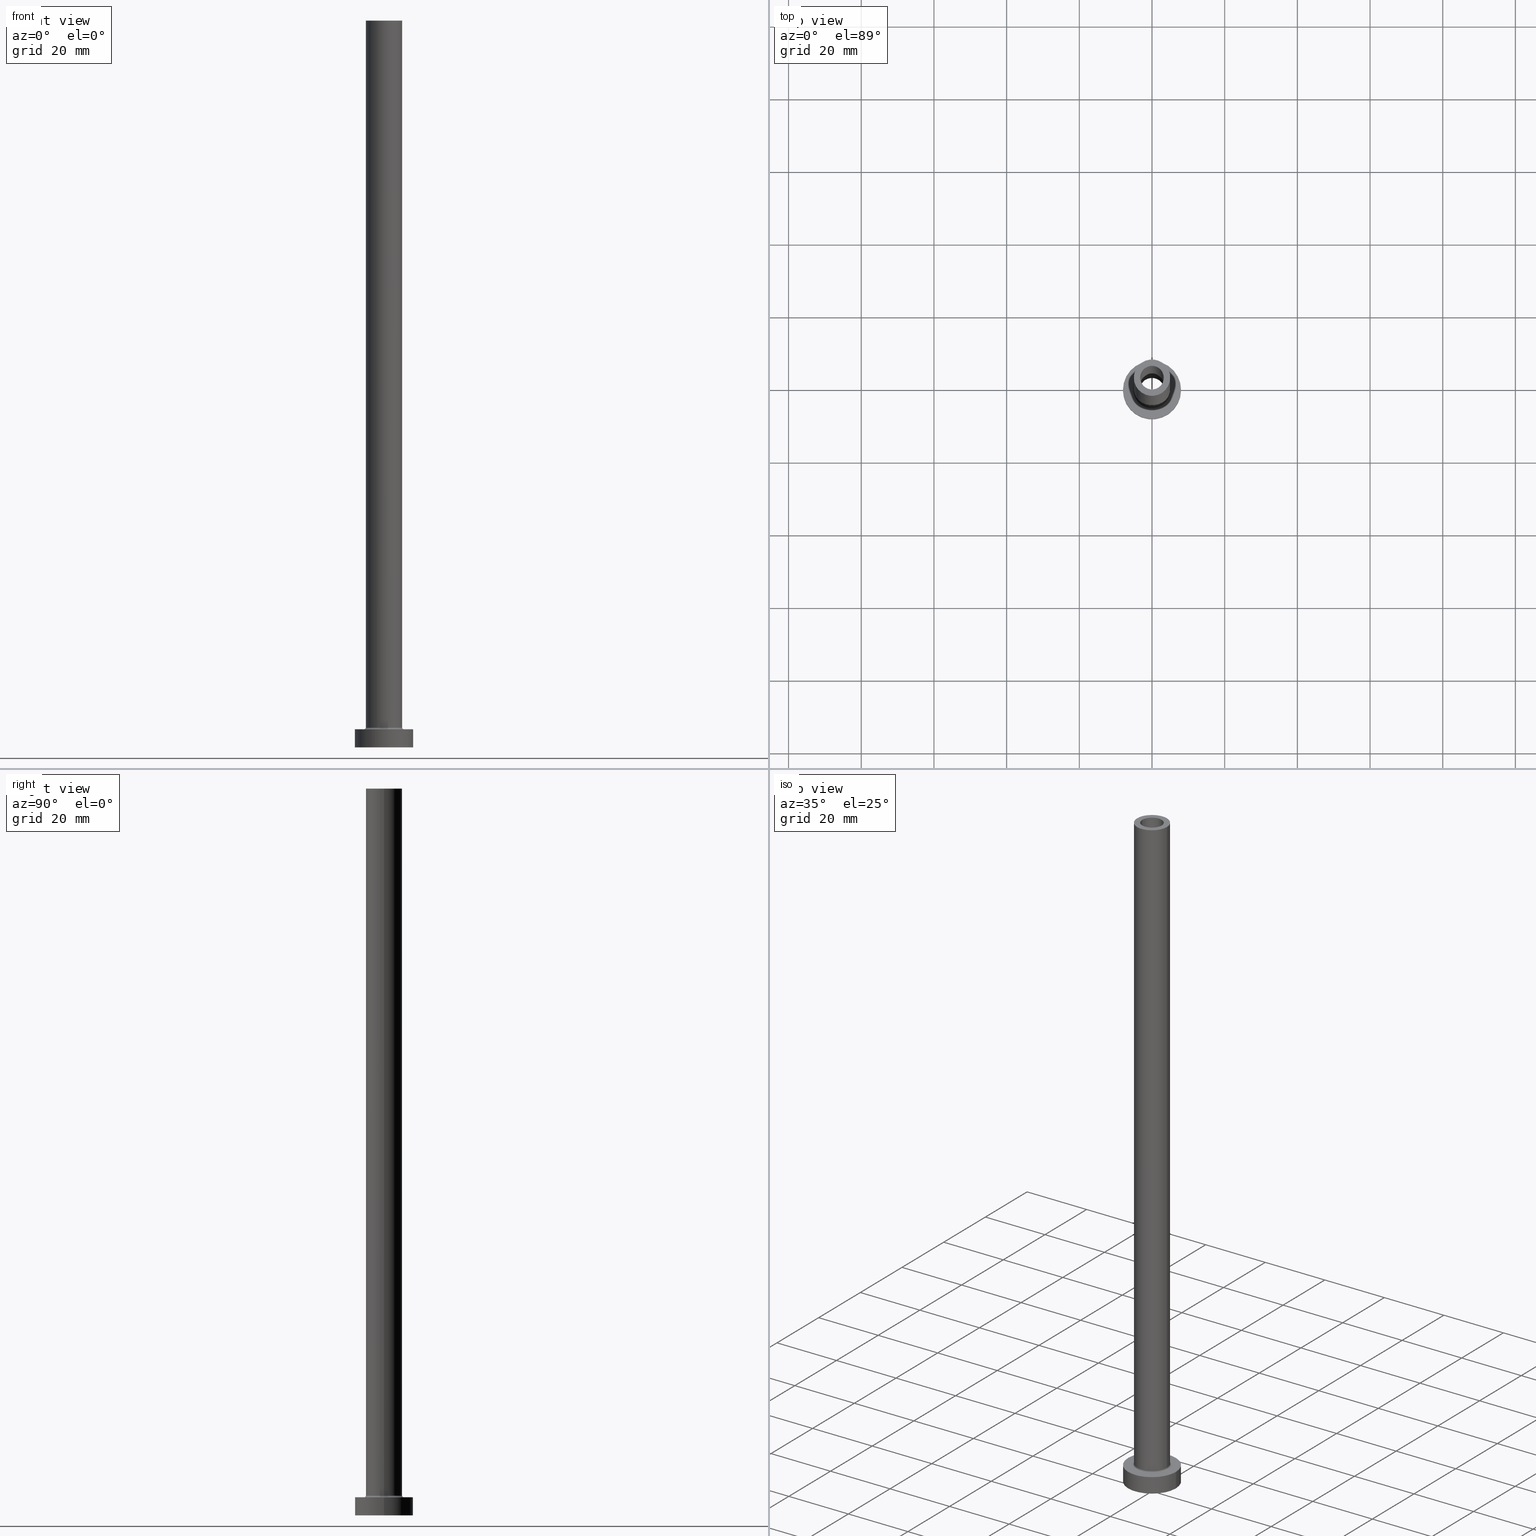
[diagram: canonical four-view strip — front | top / right | iso, engineering-drawing reading convention]
A machine part, canonical four-view strip (front | top / right | iso — engineering-drawing reading convention). The complete STEP part file that produces these views, byte-faithful:
ISO-10303-21;
HEADER;
FILE_DESCRIPTION (( 'STEP AP203' ),
    '1' );
FILE_NAME ('23e9.STEP',
    '2023-02-13T14:02:40',
    ( '' ),
    ( '' ),
    'SwSTEP 2.0',
    'SolidWorks 2019',
    '' );
FILE_SCHEMA (( 'CONFIG_CONTROL_DESIGN' ));
ENDSEC;

DATA;
#1 = ORGANIZATION ( 'NEUR�EN�', 'NEUR�EN�', '' ) ;
#2 = PRODUCT ( '23e9', '23e9', '', ( #278 ) ) ;
#3 = ADVANCED_FACE ( 'NONE', ( #79, #171 ), #389, .T. ) ;
#4 = AXIS2_PLACEMENT_3D ( 'NONE', #5, #176, #324 ) ;
#5 = CARTESIAN_POINT ( 'NONE',  ( 0.000000000000000000, 0.000000000000000000, 5.500000000000005329 ) ) ;
#6 = AXIS2_PLACEMENT_3D ( 'NONE', #315, #100, #168 ) ;
#7 = DIRECTION ( 'NONE',  ( 1.000000000000000000, 0.000000000000000000, -0.000000000000000000 ) ) ;
#8 = SECURITY_CLASSIFICATION_LEVEL ( 'unclassified' ) ;
#9 = CARTESIAN_POINT ( 'NONE',  ( -5.000000000000000000, 0.000000000000000000, 200.0000000000000000 ) ) ;
#10 = EDGE_CURVE ( 'NONE', #458, #308, #117, .T. ) ;
#11 = DATE_AND_TIME ( #297, #394 ) ;
#12 = DIRECTION ( 'NONE',  ( -1.000000000000000000, 1.224646799147351482E-16, 0.000000000000000000 ) ) ;
#13 = APPROVAL_STATUS ( 'not_yet_approved' ) ;
#14 = AXIS2_PLACEMENT_3D ( 'NONE', #430, #321, #109 ) ;
#15 = DIRECTION ( 'NONE',  ( -0.000000000000000000, -0.000000000000000000, -1.000000000000000000 ) ) ;
#16 = LINE ( 'NONE', #52, #147 ) ;
#17 = EDGE_LOOP ( 'NONE', ( #331, #310 ) ) ;
#18 = DIRECTION ( 'NONE',  ( -1.000000000000000000, 0.000000000000000000, 0.000000000000000000 ) ) ;
#19 = CIRCLE ( 'NONE', #106, 5.500000000000000000 ) ;
#20 = LINE ( 'NONE', #161, #91 ) ;
#21 = DIRECTION ( 'NONE',  ( 0.000000000000000000, 0.000000000000000000, 1.000000000000000000 ) ) ;
#22 = LOCAL_TIME ( 15, 2, 40.00000000000000000, #261 ) ;
#23 = CARTESIAN_POINT ( 'NONE',  ( -3.250000000000000444, 0.000000000000000000, 200.0000000000000000 ) ) ;
#24 = DIRECTION ( 'NONE',  ( 0.000000000000000000, 0.000000000000000000, 1.000000000000000000 ) ) ;
#25 = VECTOR ( 'NONE', #270, 1000.000000000000000 ) ;
#26 = CARTESIAN_POINT ( 'NONE',  ( -5.500000000000000000, 6.735557395310442023E-16, 5.000000000000002665 ) ) ;
#27 = DIRECTION ( 'NONE',  ( 0.000000000000000000, 0.000000000000000000, 1.000000000000000000 ) ) ;
#28 = CARTESIAN_POINT ( 'NONE',  ( 0.000000000000000000, 0.000000000000000000, 155.0000000000000284 ) ) ;
#29 = CIRCLE ( 'NONE', #14, 3.250000000000000444 ) ;
#30 = EDGE_CURVE ( 'NONE', #322, #308, #19, .T. ) ;
#31 = PERSON ( 'NEUR�EN�', 'NEUR�EN�', 'NEUR�EN�', ('NEUR�EN�'), ('NEUR�EN�'), ('NEUR�EN�') ) ;
#32 = AXIS2_PLACEMENT_3D ( 'NONE', #46, #219, #7 ) ;
#33 = CARTESIAN_POINT ( 'NONE',  ( 0.000000000000000000, 0.000000000000000000, 164.6166522241370842 ) ) ;
#34 = CIRCLE ( 'NONE', #416, 8.000000000000000000 ) ;
#35 = CIRCLE ( 'NONE', #69, 8.000000000000000000 ) ;
#36 = MANIFOLD_SOLID_BREP ( 'Odebrat vysunut�m4', #215 ) ;
#37 = EDGE_CURVE ( 'NONE', #458, #420, #336, .T. ) ;
#38 = ORIENTED_EDGE ( 'NONE', *, *, #348, .T. ) ;
#39 = DIRECTION ( 'NONE',  ( -0.000000000000000000, -0.000000000000000000, -1.000000000000000000 ) ) ;
#40 = ORIENTED_EDGE ( 'NONE', *, *, #243, .F. ) ;
#41 = AXIS2_PLACEMENT_3D ( 'NONE', #266, #451, #59 ) ;
#42 = CARTESIAN_POINT ( 'NONE',  ( 0.000000000000000000, 0.000000000000000000, 200.0000000000000000 ) ) ;
#43 = DIRECTION ( 'NONE',  ( 1.000000000000000000, 0.000000000000000000, 0.000000000000000000 ) ) ;
#44 = VERTEX_POINT ( 'NONE', #9 ) ;
#45 = COORDINATED_UNIVERSAL_TIME_OFFSET ( 1, 0, .AHEAD. ) ;
#46 = CARTESIAN_POINT ( 'NONE',  ( 0.000000000000000000, 0.000000000000000000, 200.0000000000000000 ) ) ;
#47 = PERSON_AND_ORGANIZATION ( #31, #1 ) ;
#48 = LOCAL_TIME ( 15, 2, 40.00000000000000000, #433 ) ;
#49 = CARTESIAN_POINT ( 'NONE',  ( 0.000000000000000000, 0.000000000000000000, 200.0000000000000000 ) ) ;
#50 = ORIENTED_EDGE ( 'NONE', *, *, #358, .F. ) ;
#51 = CARTESIAN_POINT ( 'NONE',  ( 0.000000000000000000, 0.000000000000000000, 155.0000000000000284 ) ) ;
#52 = CARTESIAN_POINT ( 'NONE',  ( -5.000000000000000000, 0.000000000000000000, 200.0000000000000000 ) ) ;
#53 = ORIENTED_EDGE ( 'NONE', *, *, #112, .F. ) ;
#54 = CARTESIAN_POINT ( 'NONE',  ( -3.250000000000000444, 0.000000000000000000, 200.0000000000000000 ) ) ;
#55 = CIRCLE ( 'NONE', #404, 3.250000000000000444 ) ;
#56 = DIRECTION ( 'NONE',  ( 1.000000000000000000, 0.000000000000000000, 0.000000000000000000 ) ) ;
#57 = ADVANCED_FACE ( 'NONE', ( #330 ), #190, .F. ) ;
#58 = ORIENTED_EDGE ( 'NONE', *, *, #444, .F. ) ;
#59 = DIRECTION ( 'NONE',  ( 1.000000000000000000, 0.000000000000000000, 0.000000000000000000 ) ) ;
#60 = DIRECTION ( 'NONE',  ( -1.000000000000000000, 0.000000000000000000, 0.000000000000000000 ) ) ;
#61 = PRODUCT_DEFINITION_SHAPE ( 'NONE', 'NONE',  #353 ) ;
#62 = DIRECTION ( 'NONE',  ( 0.000000000000000000, 0.000000000000000000, 1.000000000000000000 ) ) ;
#63 = ADVANCED_FACE ( 'NONE', ( #364 ), #398, .T. ) ;
#64 = CIRCLE ( 'NONE', #320, 5.000000000000000000 ) ;
#65 = AXIS2_PLACEMENT_3D ( 'NONE', #359, #284, #113 ) ;
#66 = CC_DESIGN_DATE_AND_TIME_ASSIGNMENT ( #11, #182, ( #134 ) ) ;
#67 = EDGE_CURVE ( 'NONE', #302, #137, #454, .T. ) ;
#68 = CARTESIAN_POINT ( 'NONE',  ( -3.399999999999999911, 0.000000000000000000, 155.0000000000000284 ) ) ;
#69 = AXIS2_PLACEMENT_3D ( 'NONE', #346, #27, #165 ) ;
#70 = LINE ( 'NONE', #275, #175 ) ;
#71 = ORIENTED_EDGE ( 'NONE', *, *, #37, .T. ) ;
#72 = VERTEX_POINT ( 'NONE', #455 ) ;
#73 = PERSON_AND_ORGANIZATION_ROLE ( 'design_owner' ) ;
#74 = EDGE_LOOP ( 'NONE', ( #58, #342, #395, #391 ) ) ;
#75 = COORDINATED_UNIVERSAL_TIME_OFFSET ( 1, 0, .AHEAD. ) ;
#76 = EDGE_LOOP ( 'NONE', ( #429, #448, #247, #289 ) ) ;
#77 = CALENDAR_DATE ( 2023, 13, 2 ) ;
#78 = PRODUCT_DEFINITION_FORMATION_WITH_SPECIFIED_SOURCE ( 'LIBOVOLN�', '', #2, .NOT_KNOWN. ) ;
#79 = FACE_BOUND ( 'NONE', #263, .T. ) ;
#80 = ORIENTED_EDGE ( 'NONE', *, *, #397, .F. ) ;
#81 = COORDINATED_UNIVERSAL_TIME_OFFSET ( 1, 0, .AHEAD. ) ;
#82 = CARTESIAN_POINT ( 'NONE',  ( 3.250000000000000444, 3.980102097228897245E-16, 155.0000000000000284 ) ) ;
#83 = PLANE ( 'NONE',  #283 ) ;
#84 = ORIENTED_EDGE ( 'NONE', *, *, #245, .F. ) ;
#85 = DIRECTION ( 'NONE',  ( 0.000000000000000000, 0.000000000000000000, 1.000000000000000000 ) ) ;
#86 = EDGE_LOOP ( 'NONE', ( #406, #360 ) ) ;
#87 = LINE ( 'NONE', #375, #224 ) ;
#88 = ORIENTED_EDGE ( 'NONE', *, *, #67, .F. ) ;
#89 = CARTESIAN_POINT ( 'NONE',  ( 0.000000000000000000, 0.000000000000000000, 5.000000000000000000 ) ) ;
#90 = ORIENTED_EDGE ( 'NONE', *, *, #229, .F. ) ;
#91 = VECTOR ( 'NONE', #15, 1000.000000000000000 ) ;
#92 = FACE_OUTER_BOUND ( 'NONE', #114, .T. ) ;
#93 = DIRECTION ( 'NONE',  ( 0.000000000000000000, 0.000000000000000000, -1.000000000000000000 ) ) ;
#94 = FACE_OUTER_BOUND ( 'NONE', #118, .T. ) ;
#95 = AXIS2_PLACEMENT_3D ( 'NONE', #258, #122, #400 ) ;
#96 = EDGE_CURVE ( 'NONE', #420, #458, #459, .T. ) ;
#97 = FACE_BOUND ( 'NONE', #164, .T. ) ;
#98 = ORIENTED_EDGE ( 'NONE', *, *, #96, .F. ) ;
#99 = CC_DESIGN_PERSON_AND_ORGANIZATION_ASSIGNMENT ( #142, #435, ( #134 ) ) ;
#100 = DIRECTION ( 'NONE',  ( -0.000000000000000000, -0.000000000000000000, -1.000000000000000000 ) ) ;
#101 = AXIS2_PLACEMENT_3D ( 'NONE', #372, #21, #335 ) ;
#102 = ORIENTED_EDGE ( 'NONE', *, *, #243, .T. ) ;
#103 = LOCAL_TIME ( 15, 2, 40.00000000000000000, #81 ) ;
#104 =( LENGTH_UNIT ( ) NAMED_UNIT ( * ) SI_UNIT ( .MILLI., .METRE. ) );
#105 = ORIENTED_EDGE ( 'NONE', *, *, #381, .F. ) ;
#106 = AXIS2_PLACEMENT_3D ( 'NONE', #326, #183, #43 ) ;
#107 = ORIENTED_EDGE ( 'NONE', *, *, #129, .F. ) ;
#108 = APPROVAL_DATE_TIME ( #294, #141 ) ;
#109 = DIRECTION ( 'NONE',  ( 1.000000000000000000, 0.000000000000000000, 0.000000000000000000 ) ) ;
#110 = VERTEX_POINT ( 'NONE', #155 ) ;
#111 = AXIS2_PLACEMENT_3D ( 'NONE', #450, #411, #232 ) ;
#112 = EDGE_CURVE ( 'NONE', #235, #420, #223, .T. ) ;
#113 = DIRECTION ( 'NONE',  ( 1.000000000000000000, 0.000000000000000000, -0.000000000000000000 ) ) ;
#114 = EDGE_LOOP ( 'NONE', ( #377, #231, #344, #127 ) ) ;
#115 = DIRECTION ( 'NONE',  ( 1.000000000000000000, 0.000000000000000000, 0.000000000000000000 ) ) ;
#116 = CARTESIAN_POINT ( 'NONE',  ( 0.000000000000000000, 0.000000000000000000, 0.000000000000000000 ) ) ;
#117 = CIRCLE ( 'NONE', #423, 0.5000000000000004441 ) ;
#118 = EDGE_LOOP ( 'NONE', ( #272, #157, #181, #107 ) ) ;
#119 = PERSON_AND_ORGANIZATION ( #31, #1 ) ;
#120 = DIRECTION ( 'NONE',  ( 1.000000000000000000, 0.000000000000000000, 0.000000000000000000 ) ) ;
#121 = CIRCLE ( 'NONE', #111, 0.5000000000000004441 ) ;
#122 = DIRECTION ( 'NONE',  ( 0.000000000000000000, 0.000000000000000000, 1.000000000000000000 ) ) ;
#123 = CARTESIAN_POINT ( 'NONE',  ( -3.399999999999999911, 0.000000000000000000, 0.000000000000000000 ) ) ;
#124 = CARTESIAN_POINT ( 'NONE',  ( 5.000000000000000000, 6.123233995736766282E-16, 200.0000000000000000 ) ) ;
#125 = ORIENTED_EDGE ( 'NONE', *, *, #67, .T. ) ;
#126 = CARTESIAN_POINT ( 'NONE',  ( 3.399999999999999911, 4.163799117101000559E-16, 155.0000000000000284 ) ) ;
#127 = ORIENTED_EDGE ( 'NONE', *, *, #390, .F. ) ;
#128 = AXIS2_PLACEMENT_3D ( 'NONE', #28, #250, #355 ) ;
#129 = EDGE_CURVE ( 'NONE', #393, #72, #301, .T. ) ;
#130 = ORIENTED_EDGE ( 'NONE', *, *, #233, .F. ) ;
#131 =( NAMED_UNIT ( * ) PLANE_ANGLE_UNIT ( ) SI_UNIT ( $, .RADIAN. ) );
#132 = DIRECTION ( 'NONE',  ( 0.000000000000000000, 0.000000000000000000, -1.000000000000000000 ) ) ;
#133 = CARTESIAN_POINT ( 'NONE',  ( 0.000000000000000000, 0.000000000000000000, 0.000000000000000000 ) ) ;
#134 = SECURITY_CLASSIFICATION ( '', '', #8 ) ;
#135 = CARTESIAN_POINT ( 'NONE',  ( 0.000000000000000000, 0.000000000000000000, 5.000000000000000000 ) ) ;
#136 = AXIS2_PLACEMENT_3D ( 'NONE', #412, #197, #56 ) ;
#137 = VERTEX_POINT ( 'NONE', #126 ) ;
#138 = CIRCLE ( 'NONE', #128, 3.250000000000000444 ) ;
#139 = APPROVAL_STATUS ( 'not_yet_approved' ) ;
#140 = VERTEX_POINT ( 'NONE', #160 ) ;
#141 = APPROVAL ( #139, 'NEUR�EN�' ) ;
#142 = PERSON_AND_ORGANIZATION ( #31, #1 ) ;
#143 = AXIS2_PLACEMENT_3D ( 'NONE', #135, #285, #18 ) ;
#144 = VERTEX_POINT ( 'NONE', #123 ) ;
#145 = ADVANCED_FACE ( 'NONE', ( #238, #443 ), #83, .F. ) ;
#146 = DIRECTION ( 'NONE',  ( 1.000000000000000000, 0.000000000000000000, 0.000000000000000000 ) ) ;
#147 = VECTOR ( 'NONE', #193, 1000.000000000000000 ) ;
#148 = EDGE_LOOP ( 'NONE', ( #53, #314, #102, #71 ) ) ;
#149 = APPROVAL_ROLE ( '' ) ;
#150 = FACE_OUTER_BOUND ( 'NONE', #74, .T. ) ;
#151 = ORIENTED_EDGE ( 'NONE', *, *, #444, .T. ) ;
#152 = DATE_AND_TIME ( #332, #103 ) ;
#153 = DIRECTION ( 'NONE',  ( -0.000000000000000000, -0.000000000000000000, -1.000000000000000000 ) ) ;
#154 = FACE_OUTER_BOUND ( 'NONE', #339, .T. ) ;
#155 = CARTESIAN_POINT ( 'NONE',  ( 8.000000000000000000, 9.797174393178825657E-16, 0.000000000000000000 ) ) ;
#156 = ADVANCED_FACE ( 'NONE', ( #234 ), #271, .F. ) ;
#157 = ORIENTED_EDGE ( 'NONE', *, *, #233, .T. ) ;
#158 = CIRCLE ( 'NONE', #209, 5.000000000000000000 ) ;
#159 = CYLINDRICAL_SURFACE ( 'NONE', #274, 5.000000000000000000 ) ;
#160 = CARTESIAN_POINT ( 'NONE',  ( -8.000000000000000000, 0.000000000000000000, 5.000000000000000000 ) ) ;
#161 = CARTESIAN_POINT ( 'NONE',  ( -8.000000000000000000, 0.000000000000000000, 5.000000000000000000 ) ) ;
#162 = DIRECTION ( 'NONE',  ( 1.000000000000000000, 0.000000000000000000, 0.000000000000000000 ) ) ;
#163 = DIRECTION ( 'NONE',  ( 1.000000000000000000, 0.000000000000000000, 0.000000000000000000 ) ) ;
#164 = EDGE_LOOP ( 'NONE', ( #436, #179 ) ) ;
#165 = DIRECTION ( 'NONE',  ( 1.000000000000000000, 0.000000000000000000, 0.000000000000000000 ) ) ;
#166 = DIRECTION ( 'NONE',  ( 0.000000000000000000, 0.000000000000000000, 1.000000000000000000 ) ) ;
#167 = DIRECTION ( 'NONE',  ( 0.000000000000000000, 0.000000000000000000, -1.000000000000000000 ) ) ;
#168 = DIRECTION ( 'NONE',  ( -1.000000000000000000, 0.000000000000000000, 0.000000000000000000 ) ) ;
#169 = FACE_OUTER_BOUND ( 'NONE', #222, .T. ) ;
#170 = APPROVAL_PERSON_ORGANIZATION ( #357, #141, #413 ) ;
#171 = FACE_OUTER_BOUND ( 'NONE', #288, .T. ) ;
#172 = CYLINDRICAL_SURFACE ( 'NONE', #220, 3.250000000000000444 ) ;
#173 = AXIS2_PLACEMENT_3D ( 'NONE', #415, #260, #337 ) ;
#174 = EDGE_LOOP ( 'NONE', ( #90, #151, #177, #50 ) ) ;
#175 = VECTOR ( 'NONE', #382, 1000.000000000000000 ) ;
#176 = DIRECTION ( 'NONE',  ( 0.000000000000000000, 0.000000000000000000, 1.000000000000000000 ) ) ;
#177 = ORIENTED_EDGE ( 'NONE', *, *, #252, .T. ) ;
#178 = AXIS2_PLACEMENT_3D ( 'NONE', #293, #439, #257 ) ;
#179 = ORIENTED_EDGE ( 'NONE', *, *, #316, .T. ) ;
#180 = CC_DESIGN_PERSON_AND_ORGANIZATION_ASSIGNMENT ( #366, #323, ( #78 ) ) ;
#181 = ORIENTED_EDGE ( 'NONE', *, *, #338, .F. ) ;
#182 = DATE_TIME_ROLE ( 'classification_date' ) ;
#183 = DIRECTION ( 'NONE',  ( -0.000000000000000000, -0.000000000000000000, -1.000000000000000000 ) ) ;
#184 = DATE_TIME_ROLE ( 'creation_date' ) ;
#185 = AXIS2_PLACEMENT_3D ( 'NONE', #407, #304, #374 ) ;
#186 = DIRECTION ( 'NONE',  ( 0.000000000000000000, 0.000000000000000000, 1.000000000000000000 ) ) ;
#187 = DIRECTION ( 'NONE',  ( 1.000000000000000000, 0.000000000000000000, 0.000000000000000000 ) ) ;
#188 = DATE_AND_TIME ( #77, #22 ) ;
#189 = CARTESIAN_POINT ( 'NONE',  ( 3.399999999999999911, 4.163799117101000559E-16, 0.000000000000000000 ) ) ;
#190 = TOROIDAL_SURFACE ( 'NONE', #178, 5.500000000000000000, 0.5000000000000000000 ) ;
#191 = APPLICATION_CONTEXT ( 'configuration controlled 3d designs of mechanical parts and assemblies' ) ;
#192 = CC_DESIGN_DATE_AND_TIME_ASSIGNMENT ( #188, #184, ( #353 ) ) ;
#193 = DIRECTION ( 'NONE',  ( -0.000000000000000000, -0.000000000000000000, -1.000000000000000000 ) ) ;
#194 = VERTEX_POINT ( 'NONE', #189 ) ;
#195 = APPROVAL_PERSON_ORGANIZATION ( #327, #214, #149 ) ;
#196 = CARTESIAN_POINT ( 'NONE',  ( 0.000000000000000000, 0.000000000000000000, 0.000000000000000000 ) ) ;
#197 = DIRECTION ( 'NONE',  ( -0.000000000000000000, -0.000000000000000000, -1.000000000000000000 ) ) ;
#198 = VERTEX_POINT ( 'NONE', #230 ) ;
#199 = ADVANCED_FACE ( 'NONE', ( #92 ), #376, .F. ) ;
#200 = DIRECTION ( 'NONE',  ( 0.000000000000000000, 0.000000000000000000, -1.000000000000000000 ) ) ;
#201 = DIRECTION ( 'NONE',  ( -0.000000000000000000, -0.000000000000000000, -1.000000000000000000 ) ) ;
#202 = PLANE ( 'NONE',  #445 ) ;
#203 = CIRCLE ( 'NONE', #136, 3.399999999999999911 ) ;
#204 = APPLICATION_PROTOCOL_DEFINITION ( 'international standard', 'config_control_design', 1994, #239 ) ;
#205 = AXIS2_PLACEMENT_3D ( 'NONE', #296, #269, #115 ) ;
#206 = ORIENTED_EDGE ( 'NONE', *, *, #345, .T. ) ;
#207 = ADVANCED_FACE ( 'NONE', ( #150 ), #369, .T. ) ;
#208 = ORIENTED_EDGE ( 'NONE', *, *, #365, .F. ) ;
#209 = AXIS2_PLACEMENT_3D ( 'NONE', #396, #186, #442 ) ;
#210 = EDGE_CURVE ( 'NONE', #393, #409, #317, .T. ) ;
#211 = DIRECTION ( 'NONE',  ( 1.000000000000000000, 0.000000000000000000, 0.000000000000000000 ) ) ;
#212 = EDGE_LOOP ( 'NONE', ( #88, #105 ) ) ;
#213 = APPLICATION_PROTOCOL_DEFINITION ( 'international standard', 'config_control_design', 1994, #191 ) ;
#214 = APPROVAL ( #13, 'NEUR�EN�' ) ;
#215 = CLOSED_SHELL ( 'NONE', ( #426, #268, #199, #379, #63, #207, #328, #145, #277, #3, #57, #384, #306, #156 ) ) ;
#216 = APPROVAL_ROLE ( '' ) ;
#217 = ADVANCED_BREP_SHAPE_REPRESENTATION ( '23e9', ( #36, #226 ), #303 ) ;
#218 = FACE_OUTER_BOUND ( 'NONE', #86, .T. ) ;
#219 = DIRECTION ( 'NONE',  ( 0.000000000000000000, 0.000000000000000000, 1.000000000000000000 ) ) ;
#220 = AXIS2_PLACEMENT_3D ( 'NONE', #418, #93, #60 ) ;
#221 = PERSON_AND_ORGANIZATION ( #31, #1 ) ;
#222 = EDGE_LOOP ( 'NONE', ( #125, #452, #352, #225 ) ) ;
#223 = LINE ( 'NONE', #405, #428 ) ;
#224 = VECTOR ( 'NONE', #200, 1000.000000000000000 ) ;
#225 = ORIENTED_EDGE ( 'NONE', *, *, #414, .F. ) ;
#226 = AXIS2_PLACEMENT_3D ( 'NONE', #133, #249, #424 ) ;
#227 = DIRECTION ( 'NONE',  ( -0.000000000000000000, -0.000000000000000000, -1.000000000000000000 ) ) ;
#228 = ORIENTED_EDGE ( 'NONE', *, *, #316, .F. ) ;
#229 = EDGE_CURVE ( 'NONE', #198, #140, #236, .T. ) ;
#230 = CARTESIAN_POINT ( 'NONE',  ( 8.000000000000000000, 9.797174393178825657E-16, 5.000000000000000000 ) ) ;
#231 = ORIENTED_EDGE ( 'NONE', *, *, #10, .T. ) ;
#232 = DIRECTION ( 'NONE',  ( 0.000000000000000000, 0.000000000000000000, -1.000000000000000000 ) ) ;
#233 = EDGE_CURVE ( 'NONE', #409, #387, #87, .T. ) ;
#234 = FACE_OUTER_BOUND ( 'NONE', #373, .T. ) ;
#235 = VERTEX_POINT ( 'NONE', #124 ) ;
#236 = CIRCLE ( 'NONE', #101, 8.000000000000000000 ) ;
#237 = LINE ( 'NONE', #422, #446 ) ;
#238 = FACE_BOUND ( 'NONE', #434, .T. ) ;
#239 = APPLICATION_CONTEXT ( 'configuration controlled 3d designs of mechanical parts and assemblies' ) ;
#240 = CARTESIAN_POINT ( 'NONE',  ( 3.250000000000000444, 3.980102097228897245E-16, 200.0000000000000000 ) ) ;
#241 = DESIGN_CONTEXT ( 'detailed design', #191, 'design' ) ;
#242 = CARTESIAN_POINT ( 'NONE',  ( 0.000000000000000000, 0.000000000000000000, 155.0000000000000284 ) ) ;
#243 = EDGE_CURVE ( 'NONE', #44, #458, #16, .T. ) ;
#244 = DIRECTION ( 'NONE',  ( -1.000000000000000000, 0.000000000000000000, 0.000000000000000000 ) ) ;
#245 = EDGE_CURVE ( 'NONE', #144, #194, #203, .T. ) ;
#246 = PLANE ( 'NONE',  #65 ) ;
#247 = ORIENTED_EDGE ( 'NONE', *, *, #414, .T. ) ;
#248 = CC_DESIGN_PERSON_AND_ORGANIZATION_ASSIGNMENT ( #221, #256, ( #78 ) ) ;
#249 = DIRECTION ( 'NONE',  ( 0.000000000000000000, 0.000000000000000000, 1.000000000000000000 ) ) ;
#250 = DIRECTION ( 'NONE',  ( 0.000000000000000000, 0.000000000000000000, 1.000000000000000000 ) ) ;
#251 = ORIENTED_EDGE ( 'NONE', *, *, #10, .F. ) ;
#252 = EDGE_CURVE ( 'NONE', #110, #254, #34, .T. ) ;
#253 = DIRECTION ( 'NONE',  ( 0.000000000000000000, 0.000000000000000000, 1.000000000000000000 ) ) ;
#254 = VERTEX_POINT ( 'NONE', #307 ) ;
#255 = CC_DESIGN_SECURITY_CLASSIFICATION ( #134, ( #78 ) ) ;
#256 = PERSON_AND_ORGANIZATION_ROLE ( 'creator' ) ;
#257 = DIRECTION ( 'NONE',  ( 1.000000000000000000, 0.000000000000000000, 0.000000000000000000 ) ) ;
#258 = CARTESIAN_POINT ( 'NONE',  ( 0.000000000000000000, 0.000000000000000000, 155.0000000000000284 ) ) ;
#259 = AXIS2_PLACEMENT_3D ( 'NONE', #51, #440, #120 ) ;
#260 = DIRECTION ( 'NONE',  ( 0.000000000000000000, 0.000000000000000000, -1.000000000000000000 ) ) ;
#261 = COORDINATED_UNIVERSAL_TIME_OFFSET ( 1, 0, .AHEAD. ) ;
#262 = AXIS2_PLACEMENT_3D ( 'NONE', #461, #166, #280 ) ;
#263 = EDGE_LOOP ( 'NONE', ( #267, #325 ) ) ;
#264 = CIRCLE ( 'NONE', #205, 5.500000000000000000 ) ;
#265 = FACE_OUTER_BOUND ( 'NONE', #76, .T. ) ;
#266 = CARTESIAN_POINT ( 'NONE',  ( 0.000000000000000000, 0.000000000000000000, 5.500000000000005329 ) ) ;
#267 = ORIENTED_EDGE ( 'NONE', *, *, #210, .F. ) ;
#268 = ADVANCED_FACE ( 'NONE', ( #169 ), #349, .F. ) ;
#269 = DIRECTION ( 'NONE',  ( -0.000000000000000000, -0.000000000000000000, -1.000000000000000000 ) ) ;
#270 = DIRECTION ( 'NONE',  ( 0.000000000000000000, 0.000000000000000000, -1.000000000000000000 ) ) ;
#271 = CYLINDRICAL_SURFACE ( 'NONE', #173, 3.250000000000000444 ) ;
#272 = ORIENTED_EDGE ( 'NONE', *, *, #210, .T. ) ;
#273 = AXIS2_PLACEMENT_3D ( 'NONE', #33, #132, #244 ) ;
#274 = AXIS2_PLACEMENT_3D ( 'NONE', #368, #334, #300 ) ;
#275 = CARTESIAN_POINT ( 'NONE',  ( -3.399999999999999911, 0.000000000000000000, 164.6166522241370842 ) ) ;
#276 =( NAMED_UNIT ( * ) SI_UNIT ( $, .STERADIAN. ) SOLID_ANGLE_UNIT ( ) );
#277 = ADVANCED_FACE ( 'NONE', ( #347 ), #380, .T. ) ;
#278 = MECHANICAL_CONTEXT ( 'NONE', #239, 'mechanical' ) ;
#279 = CIRCLE ( 'NONE', #95, 3.399999999999999911 ) ;
#280 = DIRECTION ( 'NONE',  ( 1.000000000000000000, 0.000000000000000000, 0.000000000000000000 ) ) ;
#281 = EDGE_CURVE ( 'NONE', #140, #198, #403, .T. ) ;
#282 = DIRECTION ( 'NONE',  ( 0.000000000000000000, 0.000000000000000000, 1.000000000000000000 ) ) ;
#283 = AXIS2_PLACEMENT_3D ( 'NONE', #116, #85, #408 ) ;
#284 = DIRECTION ( 'NONE',  ( 0.000000000000000000, 0.000000000000000000, 1.000000000000000000 ) ) ;
#285 = DIRECTION ( 'NONE',  ( -0.000000000000000000, -0.000000000000000000, -1.000000000000000000 ) ) ;
#286 = PERSON_AND_ORGANIZATION ( #31, #1 ) ;
#287 = LOCAL_TIME ( 15, 2, 40.00000000000000000, #75 ) ;
#288 = EDGE_LOOP ( 'NONE', ( #356, #38 ) ) ;
#289 = ORIENTED_EDGE ( 'NONE', *, *, #245, .T. ) ;
#290 = APPROVAL_STATUS ( 'not_yet_approved' ) ;
#291 = ORIENTED_EDGE ( 'NONE', *, *, #348, .F. ) ;
#292 = CARTESIAN_POINT ( 'NONE',  ( 5.500000000000000000, 0.000000000000000000, 5.000000000000002665 ) ) ;
#293 = CARTESIAN_POINT ( 'NONE',  ( 0.000000000000000000, 0.000000000000000000, 5.500000000000005329 ) ) ;
#294 = DATE_AND_TIME ( #441, #287 ) ;
#295 = EDGE_CURVE ( 'NONE', #44, #235, #64, .T. ) ;
#296 = CARTESIAN_POINT ( 'NONE',  ( 0.000000000000000000, 0.000000000000000000, 5.000000000000000000 ) ) ;
#297 = CALENDAR_DATE ( 2023, 13, 2 ) ;
#298 = CYLINDRICAL_SURFACE ( 'NONE', #185, 3.399999999999999911 ) ;
#299 = DIRECTION ( 'NONE',  ( 0.000000000000000000, 0.000000000000000000, 1.000000000000000000 ) ) ;
#300 = DIRECTION ( 'NONE',  ( -1.000000000000000000, 0.000000000000000000, 0.000000000000000000 ) ) ;
#301 = LINE ( 'NONE', #23, #25 ) ;
#302 = VERTEX_POINT ( 'NONE', #68 ) ;
#303 =( GEOMETRIC_REPRESENTATION_CONTEXT ( 3 ) GLOBAL_UNCERTAINTY_ASSIGNED_CONTEXT ( ( #427 ) ) GLOBAL_UNIT_ASSIGNED_CONTEXT ( ( #104, #131, #276 ) ) REPRESENTATION_CONTEXT ( 'NONE', 'WORKASPACE' ) );
#304 = DIRECTION ( 'NONE',  ( 0.000000000000000000, 0.000000000000000000, -1.000000000000000000 ) ) ;
#305 = CARTESIAN_POINT ( 'NONE',  ( 0.000000000000000000, 0.000000000000000000, 5.500000000000005329 ) ) ;
#306 = ADVANCED_FACE ( 'NONE', ( #97, #385 ), #202, .F. ) ;
#307 = CARTESIAN_POINT ( 'NONE',  ( -8.000000000000000000, 0.000000000000000000, 0.000000000000000000 ) ) ;
#308 = VERTEX_POINT ( 'NONE', #26 ) ;
#309 = CARTESIAN_POINT ( 'NONE',  ( 5.000000000000000000, 6.123233995736766282E-16, 5.500000000000005329 ) ) ;
#310 = ORIENTED_EDGE ( 'NONE', *, *, #252, .F. ) ;
#311 = AXIS2_PLACEMENT_3D ( 'NONE', #89, #227, #371 ) ;
#312 = CC_DESIGN_APPROVAL ( #141, ( #353 ) ) ;
#313 = CARTESIAN_POINT ( 'NONE',  ( -5.000000000000000000, 0.000000000000000000, 5.500000000000005329 ) ) ;
#314 = ORIENTED_EDGE ( 'NONE', *, *, #295, .F. ) ;
#315 = CARTESIAN_POINT ( 'NONE',  ( 0.000000000000000000, 0.000000000000000000, 200.0000000000000000 ) ) ;
#316 = EDGE_CURVE ( 'NONE', #387, #72, #138, .T. ) ;
#317 = CIRCLE ( 'NONE', #438, 3.250000000000000444 ) ;
#318 = EDGE_LOOP ( 'NONE', ( #370, #402 ) ) ;
#319 = CARTESIAN_POINT ( 'NONE',  ( 3.399999999999999911, 4.163799117101000559E-16, 164.6166522241370842 ) ) ;
#320 = AXIS2_PLACEMENT_3D ( 'NONE', #388, #62, #163 ) ;
#321 = DIRECTION ( 'NONE',  ( 0.000000000000000000, 0.000000000000000000, 1.000000000000000000 ) ) ;
#322 = VERTEX_POINT ( 'NONE', #292 ) ;
#323 = PERSON_AND_ORGANIZATION_ROLE ( 'design_supplier' ) ;
#324 = DIRECTION ( 'NONE',  ( 1.000000000000000000, 0.000000000000000000, 0.000000000000000000 ) ) ;
#325 = ORIENTED_EDGE ( 'NONE', *, *, #345, .F. ) ;
#326 = CARTESIAN_POINT ( 'NONE',  ( 0.000000000000000000, 0.000000000000000000, 5.000000000000000000 ) ) ;
#327 = PERSON_AND_ORGANIZATION ( #31, #1 ) ;
#328 = ADVANCED_FACE ( 'NONE', ( #392, #218 ), #246, .T. ) ;
#329 = AXIS2_PLACEMENT_3D ( 'NONE', #196, #39, #211 ) ;
#330 = FACE_OUTER_BOUND ( 'NONE', #351, .T. ) ;
#331 = ORIENTED_EDGE ( 'NONE', *, *, #453, .F. ) ;
#332 = CALENDAR_DATE ( 2023, 13, 2 ) ;
#333 = CC_DESIGN_PERSON_AND_ORGANIZATION_ASSIGNMENT ( #47, #361, ( #353 ) ) ;
#334 = DIRECTION ( 'NONE',  ( -0.000000000000000000, -0.000000000000000000, -1.000000000000000000 ) ) ;
#335 = DIRECTION ( 'NONE',  ( 1.000000000000000000, 0.000000000000000000, 0.000000000000000000 ) ) ;
#336 = CIRCLE ( 'NONE', #4, 5.000000000000000000 ) ;
#337 = DIRECTION ( 'NONE',  ( -1.000000000000000000, 0.000000000000000000, 0.000000000000000000 ) ) ;
#338 = EDGE_CURVE ( 'NONE', #72, #387, #29, .T. ) ;
#339 = EDGE_LOOP ( 'NONE', ( #291, #431, #350, #40 ) ) ;
#340 = CC_DESIGN_APPROVAL ( #410, ( #78 ) ) ;
#341 = CARTESIAN_POINT ( 'NONE',  ( 0.000000000000000000, 0.000000000000000000, 0.000000000000000000 ) ) ;
#342 = ORIENTED_EDGE ( 'NONE', *, *, #281, .F. ) ;
#343 = DIRECTION ( 'NONE',  ( 1.000000000000000000, 0.000000000000000000, -0.000000000000000000 ) ) ;
#344 = ORIENTED_EDGE ( 'NONE', *, *, #30, .F. ) ;
#345 = EDGE_CURVE ( 'NONE', #409, #393, #55, .T. ) ;
#346 = CARTESIAN_POINT ( 'NONE',  ( 0.000000000000000000, 0.000000000000000000, 0.000000000000000000 ) ) ;
#347 = FACE_OUTER_BOUND ( 'NONE', #148, .T. ) ;
#348 = EDGE_CURVE ( 'NONE', #235, #44, #158, .T. ) ;
#349 = CYLINDRICAL_SURFACE ( 'NONE', #273, 3.399999999999999911 ) ;
#350 = ORIENTED_EDGE ( 'NONE', *, *, #96, .T. ) ;
#351 = EDGE_LOOP ( 'NONE', ( #251, #98, #378, #208 ) ) ;
#352 = ORIENTED_EDGE ( 'NONE', *, *, #397, .T. ) ;
#353 = PRODUCT_DEFINITION ( 'NEZN�M�', '', #78, #241 ) ;
#354 = LINE ( 'NONE', #319, #425 ) ;
#355 = DIRECTION ( 'NONE',  ( 1.000000000000000000, 0.000000000000000000, 0.000000000000000000 ) ) ;
#356 = ORIENTED_EDGE ( 'NONE', *, *, #295, .T. ) ;
#357 = PERSON_AND_ORGANIZATION ( #31, #1 ) ;
#358 = EDGE_CURVE ( 'NONE', #140, #254, #20, .T. ) ;
#359 = CARTESIAN_POINT ( 'NONE',  ( 0.000000000000000000, 0.000000000000000000, 5.000000000000000000 ) ) ;
#360 = ORIENTED_EDGE ( 'NONE', *, *, #229, .T. ) ;
#361 = PERSON_AND_ORGANIZATION_ROLE ( 'creator' ) ;
#362 = CARTESIAN_POINT ( 'NONE',  ( -5.500000000000000000, 6.735557395310442023E-16, 5.500000000000005329 ) ) ;
#363 = APPROVAL_DATE_TIME ( #399, #410 ) ;
#364 = FACE_OUTER_BOUND ( 'NONE', #174, .T. ) ;
#365 = EDGE_CURVE ( 'NONE', #308, #322, #264, .T. ) ;
#366 = PERSON_AND_ORGANIZATION ( #31, #1 ) ;
#367 = DIRECTION ( 'NONE',  ( 1.224646799147353207E-16, 1.000000000000000000, -0.000000000000000000 ) ) ;
#368 = CARTESIAN_POINT ( 'NONE',  ( 0.000000000000000000, 0.000000000000000000, 200.0000000000000000 ) ) ;
#369 = CYLINDRICAL_SURFACE ( 'NONE', #311, 8.000000000000000000 ) ;
#370 = ORIENTED_EDGE ( 'NONE', *, *, #30, .T. ) ;
#371 = DIRECTION ( 'NONE',  ( -1.000000000000000000, 0.000000000000000000, 0.000000000000000000 ) ) ;
#372 = CARTESIAN_POINT ( 'NONE',  ( 0.000000000000000000, 0.000000000000000000, 5.000000000000000000 ) ) ;
#373 = EDGE_LOOP ( 'NONE', ( #130, #206, #456, #228 ) ) ;
#374 = DIRECTION ( 'NONE',  ( -1.000000000000000000, 0.000000000000000000, 0.000000000000000000 ) ) ;
#375 = CARTESIAN_POINT ( 'NONE',  ( 3.250000000000000444, 3.980102097228897245E-16, 200.0000000000000000 ) ) ;
#376 = TOROIDAL_SURFACE ( 'NONE', #41, 5.500000000000000000, 0.5000000000000000000 ) ;
#377 = ORIENTED_EDGE ( 'NONE', *, *, #37, .F. ) ;
#378 = ORIENTED_EDGE ( 'NONE', *, *, #390, .T. ) ;
#379 = ADVANCED_FACE ( 'NONE', ( #154 ), #159, .T. ) ;
#380 = CYLINDRICAL_SURFACE ( 'NONE', #6, 5.000000000000000000 ) ;
#381 = EDGE_CURVE ( 'NONE', #137, #302, #279, .T. ) ;
#382 = DIRECTION ( 'NONE',  ( 0.000000000000000000, 0.000000000000000000, -1.000000000000000000 ) ) ;
#383 = CIRCLE ( 'NONE', #329, 3.399999999999999911 ) ;
#384 = ADVANCED_FACE ( 'NONE', ( #265 ), #298, .F. ) ;
#385 = FACE_OUTER_BOUND ( 'NONE', #212, .T. ) ;
#386 = AXIS2_PLACEMENT_3D ( 'NONE', #305, #299, #401 ) ;
#387 = VERTEX_POINT ( 'NONE', #82 ) ;
#388 = CARTESIAN_POINT ( 'NONE',  ( 0.000000000000000000, 0.000000000000000000, 200.0000000000000000 ) ) ;
#389 = PLANE ( 'NONE',  #32 ) ;
#390 = EDGE_CURVE ( 'NONE', #420, #322, #121, .T. ) ;
#391 = ORIENTED_EDGE ( 'NONE', *, *, #453, .T. ) ;
#392 = FACE_BOUND ( 'NONE', #318, .T. ) ;
#393 = VERTEX_POINT ( 'NONE', #54 ) ;
#394 = LOCAL_TIME ( 15, 2, 40.00000000000000000, #45 ) ;
#395 = ORIENTED_EDGE ( 'NONE', *, *, #358, .T. ) ;
#396 = CARTESIAN_POINT ( 'NONE',  ( 0.000000000000000000, 0.000000000000000000, 200.0000000000000000 ) ) ;
#397 = EDGE_CURVE ( 'NONE', #194, #144, #383, .T. ) ;
#398 = CYLINDRICAL_SURFACE ( 'NONE', #143, 8.000000000000000000 ) ;
#399 = DATE_AND_TIME ( #437, #48 ) ;
#400 = DIRECTION ( 'NONE',  ( 1.000000000000000000, 0.000000000000000000, 0.000000000000000000 ) ) ;
#401 = DIRECTION ( 'NONE',  ( 1.000000000000000000, 0.000000000000000000, 0.000000000000000000 ) ) ;
#402 = ORIENTED_EDGE ( 'NONE', *, *, #365, .T. ) ;
#403 = CIRCLE ( 'NONE', #262, 8.000000000000000000 ) ;
#404 = AXIS2_PLACEMENT_3D ( 'NONE', #42, #253, #146 ) ;
#405 = CARTESIAN_POINT ( 'NONE',  ( 5.000000000000000000, 6.123233995736766282E-16, 200.0000000000000000 ) ) ;
#406 = ORIENTED_EDGE ( 'NONE', *, *, #281, .T. ) ;
#407 = CARTESIAN_POINT ( 'NONE',  ( 0.000000000000000000, 0.000000000000000000, 164.6166522241370842 ) ) ;
#408 = DIRECTION ( 'NONE',  ( 1.000000000000000000, 0.000000000000000000, -0.000000000000000000 ) ) ;
#409 = VERTEX_POINT ( 'NONE', #240 ) ;
#410 = APPROVAL ( #290, 'NEUR�EN�' ) ;
#411 = DIRECTION ( 'NONE',  ( 0.000000000000000000, -1.000000000000000000, 0.000000000000000000 ) ) ;
#412 = CARTESIAN_POINT ( 'NONE',  ( 0.000000000000000000, 0.000000000000000000, 0.000000000000000000 ) ) ;
#413 = APPROVAL_ROLE ( '' ) ;
#414 = EDGE_CURVE ( 'NONE', #302, #144, #70, .T. ) ;
#415 = CARTESIAN_POINT ( 'NONE',  ( 0.000000000000000000, 0.000000000000000000, 200.0000000000000000 ) ) ;
#416 = AXIS2_PLACEMENT_3D ( 'NONE', #341, #24, #162 ) ;
#417 = CC_DESIGN_APPROVAL ( #214, ( #134 ) ) ;
#418 = CARTESIAN_POINT ( 'NONE',  ( 0.000000000000000000, 0.000000000000000000, 200.0000000000000000 ) ) ;
#419 = CC_DESIGN_PERSON_AND_ORGANIZATION_ASSIGNMENT ( #286, #73, ( #2 ) ) ;
#420 = VERTEX_POINT ( 'NONE', #309 ) ;
#421 = SHAPE_DEFINITION_REPRESENTATION ( #61, #217 ) ;
#422 = CARTESIAN_POINT ( 'NONE',  ( 8.000000000000000000, 9.797174393178825657E-16, 5.000000000000000000 ) ) ;
#423 = AXIS2_PLACEMENT_3D ( 'NONE', #362, #367, #12 ) ;
#424 = DIRECTION ( 'NONE',  ( 1.000000000000000000, 0.000000000000000000, 0.000000000000000000 ) ) ;
#425 = VECTOR ( 'NONE', #167, 1000.000000000000000 ) ;
#426 = ADVANCED_FACE ( 'NONE', ( #94 ), #172, .F. ) ;
#427 = UNCERTAINTY_MEASURE_WITH_UNIT (LENGTH_MEASURE( 1.000000000000000082E-05 ), #104, 'distance_accuracy_value', 'NONE');
#428 = VECTOR ( 'NONE', #153, 1000.000000000000000 ) ;
#429 = ORIENTED_EDGE ( 'NONE', *, *, #460, .F. ) ;
#430 = CARTESIAN_POINT ( 'NONE',  ( 0.000000000000000000, 0.000000000000000000, 155.0000000000000284 ) ) ;
#431 = ORIENTED_EDGE ( 'NONE', *, *, #112, .T. ) ;
#432 = PRODUCT_RELATED_PRODUCT_CATEGORY ( 'detail', '', ( #2 ) ) ;
#433 = COORDINATED_UNIVERSAL_TIME_OFFSET ( 1, 0, .AHEAD. ) ;
#434 = EDGE_LOOP ( 'NONE', ( #84, #80 ) ) ;
#435 = PERSON_AND_ORGANIZATION_ROLE ( 'classification_officer' ) ;
#436 = ORIENTED_EDGE ( 'NONE', *, *, #338, .T. ) ;
#437 = CALENDAR_DATE ( 2023, 13, 2 ) ;
#438 = AXIS2_PLACEMENT_3D ( 'NONE', #49, #447, #187 ) ;
#439 = DIRECTION ( 'NONE',  ( 0.000000000000000000, 0.000000000000000000, 1.000000000000000000 ) ) ;
#440 = DIRECTION ( 'NONE',  ( 0.000000000000000000, 0.000000000000000000, 1.000000000000000000 ) ) ;
#441 = CALENDAR_DATE ( 2023, 13, 2 ) ;
#442 = DIRECTION ( 'NONE',  ( 1.000000000000000000, 0.000000000000000000, 0.000000000000000000 ) ) ;
#443 = FACE_OUTER_BOUND ( 'NONE', #17, .T. ) ;
#444 = EDGE_CURVE ( 'NONE', #198, #110, #237, .T. ) ;
#445 = AXIS2_PLACEMENT_3D ( 'NONE', #242, #282, #343 ) ;
#446 = VECTOR ( 'NONE', #201, 1000.000000000000000 ) ;
#447 = DIRECTION ( 'NONE',  ( 0.000000000000000000, 0.000000000000000000, 1.000000000000000000 ) ) ;
#448 = ORIENTED_EDGE ( 'NONE', *, *, #381, .T. ) ;
#449 = APPROVAL_DATE_TIME ( #152, #214 ) ;
#450 = CARTESIAN_POINT ( 'NONE',  ( 5.500000000000000000, 0.000000000000000000, 5.500000000000005329 ) ) ;
#451 = DIRECTION ( 'NONE',  ( 0.000000000000000000, 0.000000000000000000, 1.000000000000000000 ) ) ;
#452 = ORIENTED_EDGE ( 'NONE', *, *, #460, .T. ) ;
#453 = EDGE_CURVE ( 'NONE', #254, #110, #35, .T. ) ;
#454 = CIRCLE ( 'NONE', #259, 3.399999999999999911 ) ;
#455 = CARTESIAN_POINT ( 'NONE',  ( -3.250000000000000444, 0.000000000000000000, 155.0000000000000284 ) ) ;
#456 = ORIENTED_EDGE ( 'NONE', *, *, #129, .T. ) ;
#457 = APPROVAL_PERSON_ORGANIZATION ( #119, #410, #216 ) ;
#458 = VERTEX_POINT ( 'NONE', #313 ) ;
#459 = CIRCLE ( 'NONE', #386, 5.000000000000000000 ) ;
#460 = EDGE_CURVE ( 'NONE', #137, #194, #354, .T. ) ;
#461 = CARTESIAN_POINT ( 'NONE',  ( 0.000000000000000000, 0.000000000000000000, 5.000000000000000000 ) ) ;
ENDSEC;
END-ISO-10303-21;
